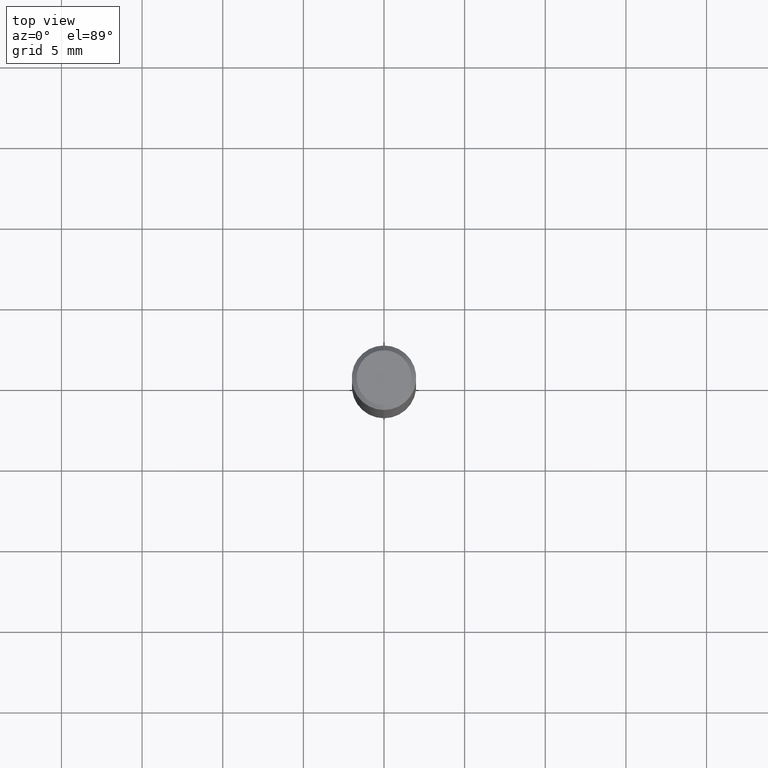
[diagram: clean part render]
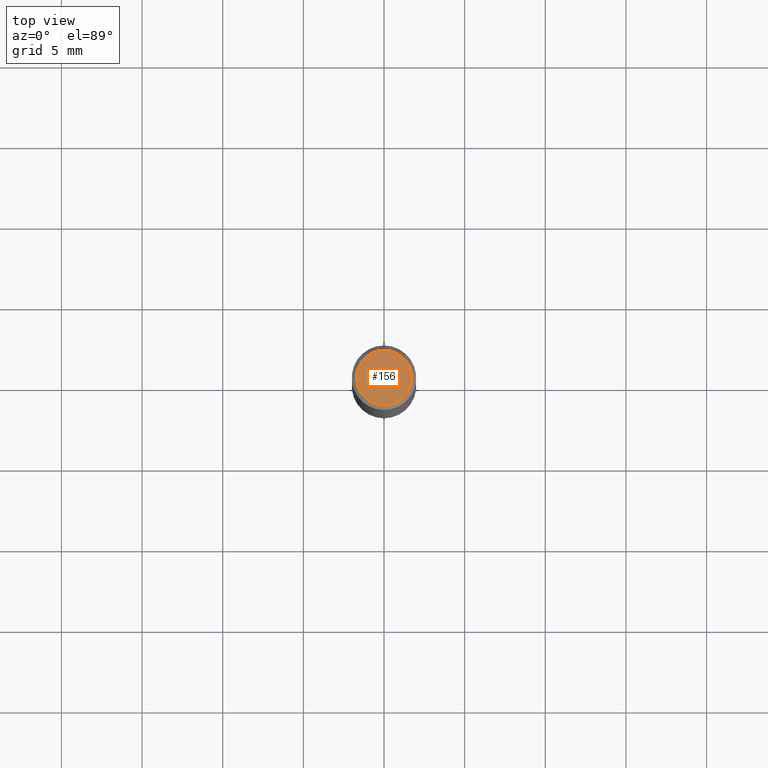
[diagram: same view with one face highlighted and labeled with its STEP entity id]
A machine part, top view. The second image highlights one B-rep face of the part: STEP entity #156.
In plain terms, the highlighted planar face has unit normal (-0, 0, 1).
Its self-contained STEP definition (entity closure, byte-faithful):
#106=VERTEX_POINT('',#249);
#156=ADVANCED_FACE('',(#305),#306,.T.);
#168=EDGE_CURVE('',#196,#106,#320,.T.);
#178=EDGE_CURVE('',#106,#196,#331,.T.);
#196=VERTEX_POINT('',#351);
#249=CARTESIAN_POINT('',(0.0,1.7,0.0));
#305=FACE_OUTER_BOUND('',#477,.T.);
#306=PLANE('',#478);
#320=CIRCLE('',#497,1.7);
#331=CIRCLE('',#513,1.7);
#351=CARTESIAN_POINT('',(2.08183080149804E-016,-1.7,0.0));
#477=EDGE_LOOP('',(#650,#651));
#478=AXIS2_PLACEMENT_3D('',#652,#653,#654);
#497=AXIS2_PLACEMENT_3D('',#671,#672,#673);
#513=AXIS2_PLACEMENT_3D('',#687,#688,#689);
#650=ORIENTED_EDGE('',*,*,#178,.F.);
#651=ORIENTED_EDGE('',*,*,#168,.F.);
#652=CARTESIAN_POINT('',(0.0,0.85,0.0));
#653=DIRECTION('',(-0.0,0.0,1.0));
#654=DIRECTION('',(0.0,-1.0,0.0));
#671=CARTESIAN_POINT('',(0.0,0.0,0.0));
#672=DIRECTION('',(0.0,0.0,-1.0));
#673=DIRECTION('',(0.0,1.0,0.0));
#687=CARTESIAN_POINT('',(0.0,0.0,0.0));
#688=DIRECTION('',(0.0,0.0,-1.0));
#689=DIRECTION('',(0.0,1.0,0.0));